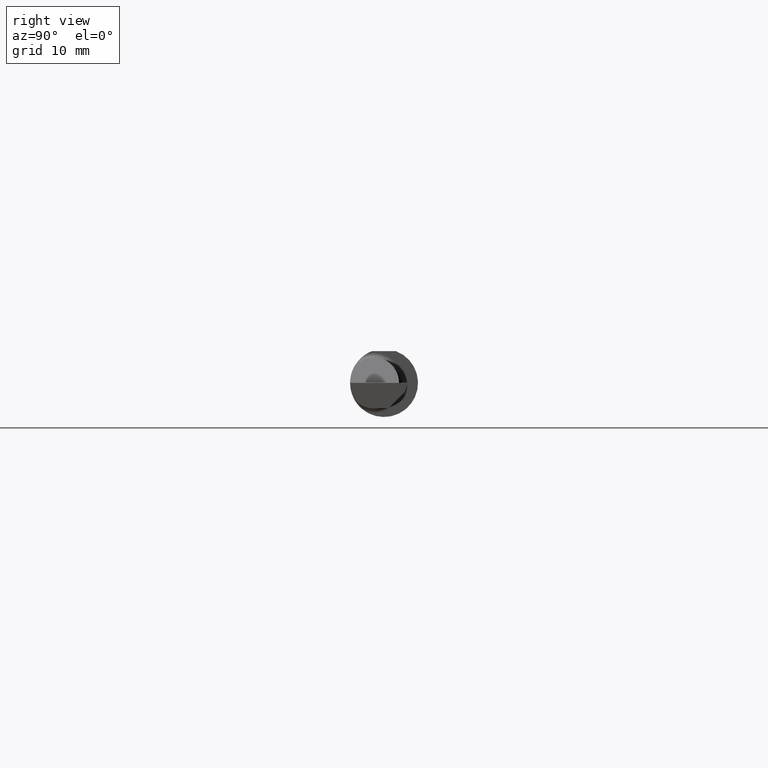
[diagram: clean part render]
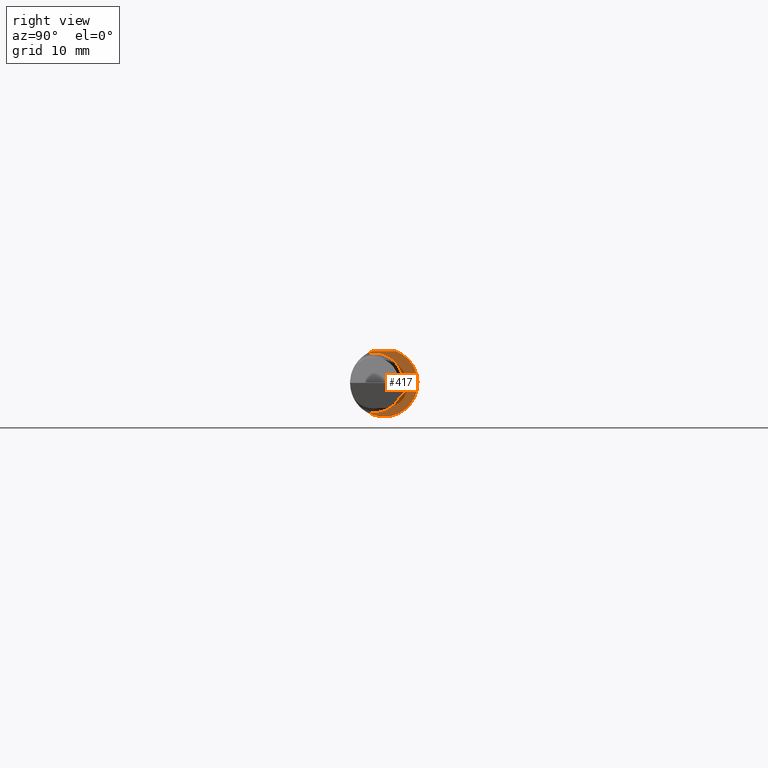
[diagram: same view with one face highlighted and labeled with its STEP entity id]
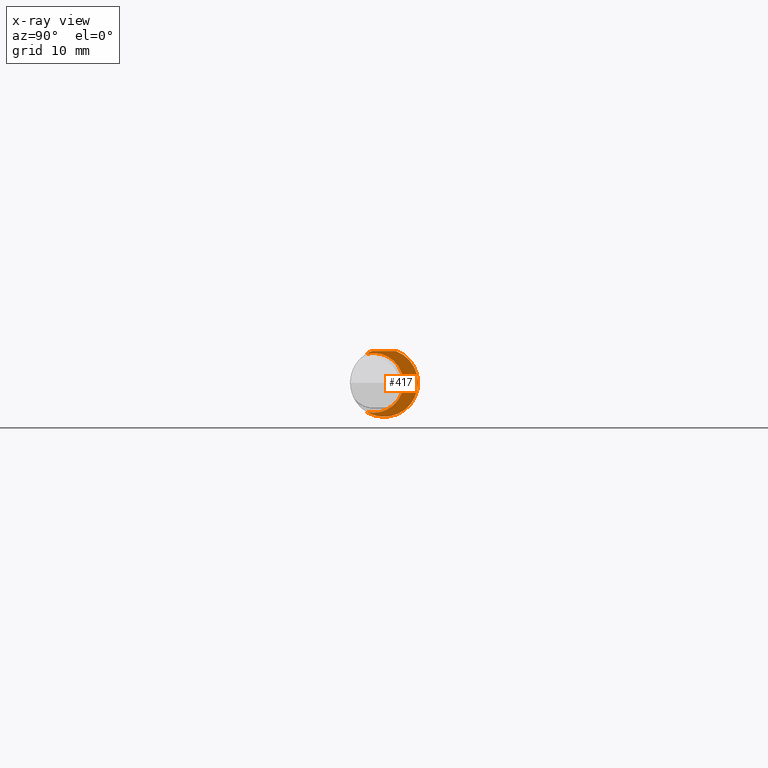
[diagram: x-ray of the same camera — body ghosted, the highlighted face saturated]
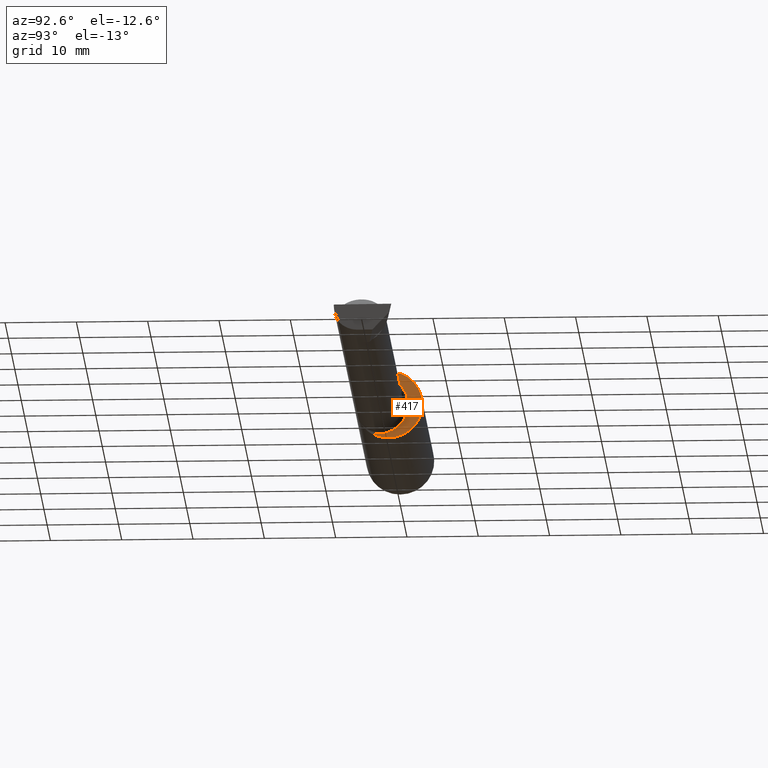
[diagram: same view with one face highlighted and labeled with its STEP entity id]
A machine part, right view. The second image highlights one B-rep face of the part: STEP entity #417.
The next image is the same camera in x-ray: the body ghosted, the highlighted face saturated — about 3% of this face is hidden behind the body in this view.
A second angle (auxiliary view) of the same face is appended — the face is thin or edge-on in the first view.
In plain terms, the highlighted planar face has unit normal (1, 0, 0).
Its self-contained STEP definition (entity closure, byte-faithful):
#1 = DIRECTION ( 'NONE',  ( 0.000000000000000000, 1.000000000000000000, 0.000000000000000000 ) ) ;
#23 = AXIS2_PLACEMENT_3D ( 'NONE', #399, #215, #1 ) ;
#31 = VERTEX_POINT ( 'NONE', #441 ) ;
#39 = DIRECTION ( 'NONE',  ( -4.268512490100411279E-18, 1.000000000000000000, 0.000000000000000000 ) ) ;
#81 = VERTEX_POINT ( 'NONE', #200 ) ;
#89 = CIRCLE ( 'NONE', #23, 0.1873499999999999888 ) ;
#114 = EDGE_LOOP ( 'NONE', ( #523, #237, #261, #638 ) ) ;
#130 = DIRECTION ( 'NONE',  ( 4.268512490100411279E-18, -1.000000000000000000, 1.438723400918613551E-16 ) ) ;
#172 = CIRCLE ( 'NONE', #516, 0.1873499999999999888 ) ;
#194 = CARTESIAN_POINT ( 'NONE',  ( 1.450000000000000178, 0.06597272163553663527, 0.1753499999999999781 ) ) ;
#200 = CARTESIAN_POINT ( 'NONE',  ( 1.450000000000000178, -0.06597272163553666302, 0.1753499999999999781 ) ) ;
#215 = DIRECTION ( 'NONE',  ( 1.000000000000000000, 4.268512490100411279E-18, 0.000000000000000000 ) ) ;
#217 = EDGE_CURVE ( 'NONE', #81, #482, #172, .T. ) ;
#220 = DIRECTION ( 'NONE',  ( 1.000000000000000000, 4.268512490100411279E-18, 0.000000000000000000 ) ) ;
#228 = AXIS2_PLACEMENT_3D ( 'NONE', #490, #589, #547 ) ;
#237 = ORIENTED_EDGE ( 'NONE', *, *, #299, .T. ) ;
#256 = CIRCLE ( 'NONE', #228, 0.1650499999999997802 ) ;
#259 = DIRECTION ( 'NONE',  ( 0.000000000000000000, 1.000000000000000000, 0.000000000000000000 ) ) ;
#261 = ORIENTED_EDGE ( 'NONE', *, *, #217, .T. ) ;
#284 = CARTESIAN_POINT ( 'NONE',  ( 1.450000000000000178, 0.2373500000000000332, 0.1753499999999999504 ) ) ;
#293 = CARTESIAN_POINT ( 'NONE',  ( 1.450000000000000178, 0.1076499999999997736, 0.000000000000000000 ) ) ;
#299 = EDGE_CURVE ( 'NONE', #406, #81, #624, .T. ) ;
#399 = CARTESIAN_POINT ( 'NONE',  ( 1.450000000000000178, 0.000000000000000000, 0.000000000000000000 ) ) ;
#406 = VERTEX_POINT ( 'NONE', #194 ) ;
#417 = ADVANCED_FACE ( 'NONE', ( #542 ), #592, .T. ) ;
#425 = EDGE_CURVE ( 'NONE', #482, #31, #256, .T. ) ;
#441 = CARTESIAN_POINT ( 'NONE',  ( 1.450000000000000178, -0.09715400696864165409, -0.1601908905959921192 ) ) ;
#482 = VERTEX_POINT ( 'NONE', #544 ) ;
#490 = CARTESIAN_POINT ( 'NONE',  ( 1.450000000000000178, -0.05740000000000000657, 0.000000000000000000 ) ) ;
#509 = CARTESIAN_POINT ( 'NONE',  ( 1.450000000000000178, 0.000000000000000000, 0.000000000000000000 ) ) ;
#516 = AXIS2_PLACEMENT_3D ( 'NONE', #509, #220, #259 ) ;
#523 = ORIENTED_EDGE ( 'NONE', *, *, #524, .T. ) ;
#524 = EDGE_CURVE ( 'NONE', #31, #406, #89, .T. ) ;
#537 = VECTOR ( 'NONE', #130, 39.37007874015748143 ) ;
#542 = FACE_OUTER_BOUND ( 'NONE', #114, .T. ) ;
#544 = CARTESIAN_POINT ( 'NONE',  ( 1.450000000000000178, -0.09715400696864165409, 0.1601908905959921192 ) ) ;
#547 = DIRECTION ( 'NONE',  ( 0.000000000000000000, -1.000000000000000000, 0.000000000000000000 ) ) ;
#589 = DIRECTION ( 'NONE',  ( -1.000000000000000000, -4.268512490100411279E-18, -0.000000000000000000 ) ) ;
#592 = PLANE ( 'NONE',  #607 ) ;
#607 = AXIS2_PLACEMENT_3D ( 'NONE', #293, #640, #39 ) ;
#624 = LINE ( 'NONE', #284, #537 ) ;
#638 = ORIENTED_EDGE ( 'NONE', *, *, #425, .T. ) ;
#640 = DIRECTION ( 'NONE',  ( 1.000000000000000000, 4.268512490100411279E-18, 0.000000000000000000 ) ) ;